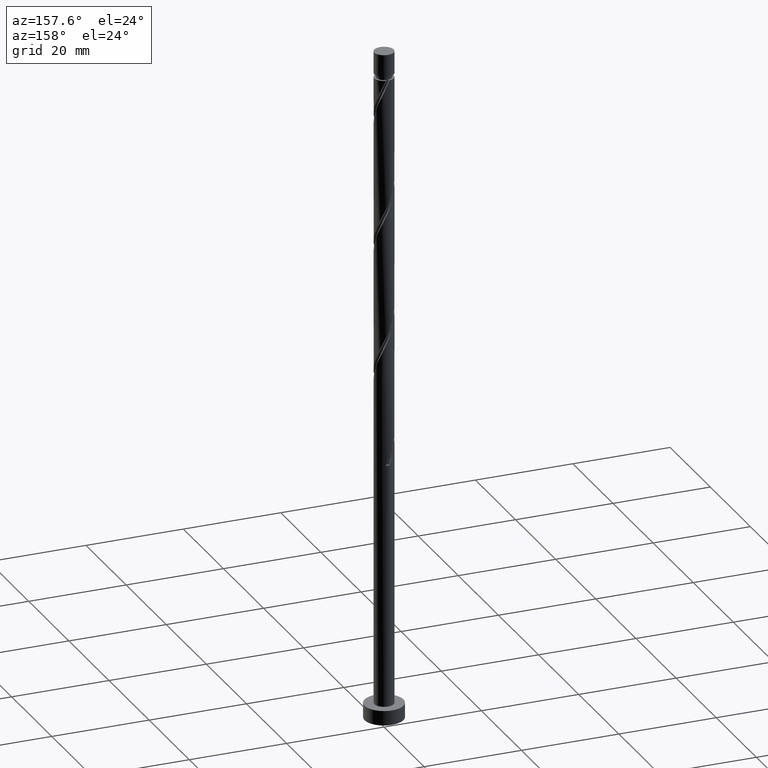
[diagram: clean part render]
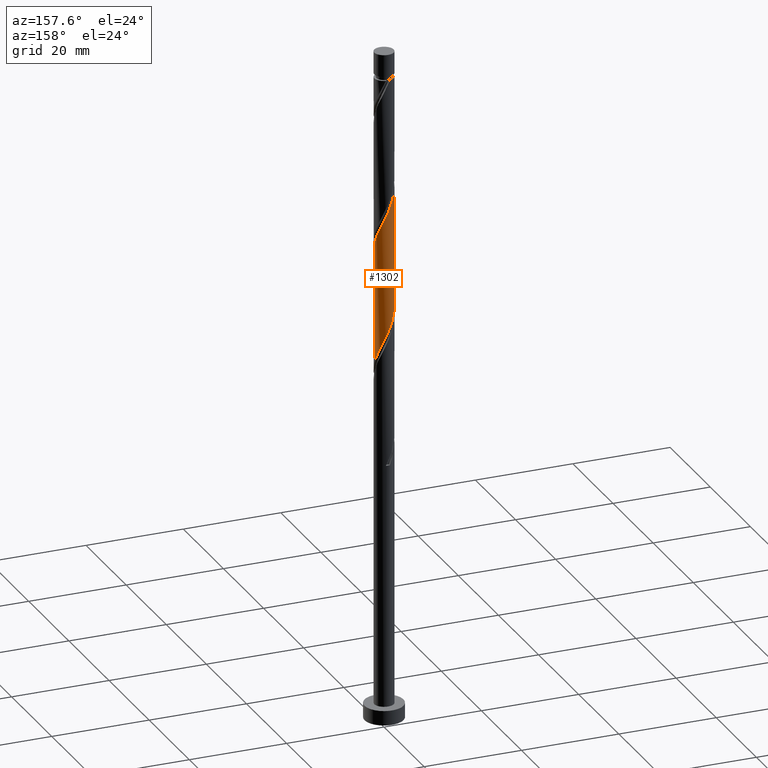
[diagram: same view with one face highlighted and labeled with its STEP entity id]
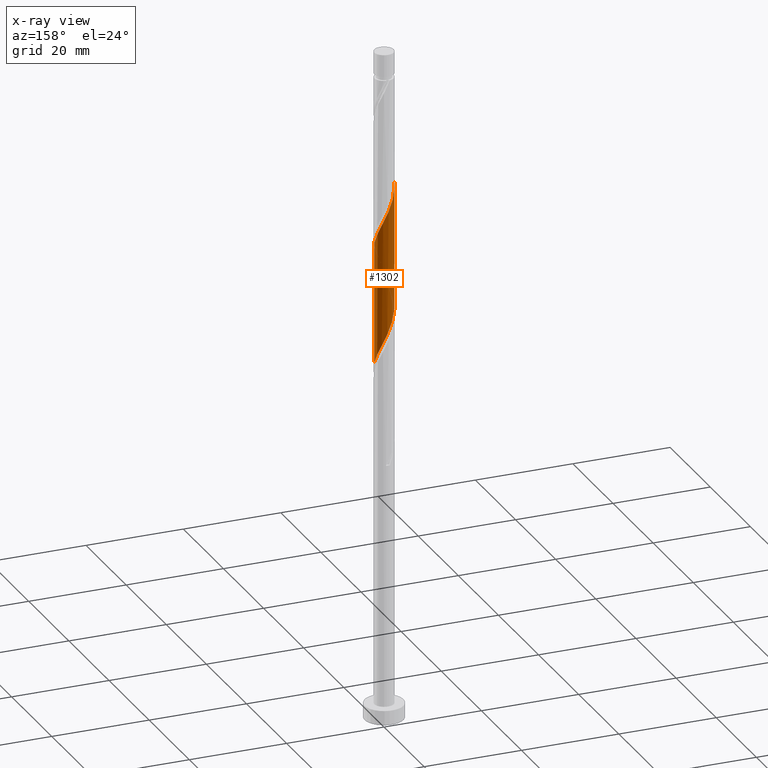
[diagram: x-ray of the same camera — body ghosted, the highlighted face saturated]
A machine part, auxiliary view. The second image highlights one B-rep face of the part: STEP entity #1302.
The next image is the same camera in x-ray: the body ghosted, the highlighted face saturated — about 0% of this face is hidden behind the body in this view.
In plain terms, the highlighted cylindrical surface (edge-blend (fillet) strip) has radius 2 mm, axis along (-0, -0, -1).
Its self-contained STEP definition (entity closure, byte-faithful):
#50 = CARTESIAN_POINT ( 'NONE',  ( 0.1703224295138035527, 1.992734370156876489, 105.2348544033738023 ) ) ;
#56 = CARTESIAN_POINT ( 'NONE',  ( -0.1161895186124997786, 2.017223038501451349, 105.8409150094344113 ) ) ;
#62 = CARTESIAN_POINT ( 'NONE',  ( -0.6798004310727961963, 1.902776961498554575, 107.0530362215555868 ) ) ;
#90 = VERTEX_POINT ( 'NONE', #553 ) ;
#96 = CARTESIAN_POINT ( 'NONE',  ( -0.1703224295138028310, 1.992734370156874713, 80.99243016094956715 ) ) ;
#117 = CARTESIAN_POINT ( 'NONE',  ( 1.394470680848406197, 1.433684595806965945, 77.35606652458592691 ) ) ;
#142 = CARTESIAN_POINT ( 'NONE',  ( 2.000000000000000000, 2.449293598294706414E-16, 138.4499999999999886 ) ) ;
#171 = AXIS2_PLACEMENT_3D ( 'NONE', #875, #769, #1139 ) ;
#183 = ORIENTED_EDGE ( 'NONE', *, *, #1131, .F. ) ;
#190 = ORIENTED_EDGE ( 'NONE', *, *, #549, .F. ) ;
#215 = CARTESIAN_POINT ( 'NONE',  ( 1.600603406160404418, 1.233189980288573295, 76.75000591852530363 ) ) ;
#246 = VERTEX_POINT ( 'NONE', #1659 ) ;
#248 = CARTESIAN_POINT ( 'NONE',  ( 0.6798004310727959743, 1.902776961498551689, 79.17424834276771151 ) ) ;
#250 = DIRECTION ( 'NONE',  ( -0.000000000000000000, -0.000000000000000000, -1.000000000000000000 ) ) ;
#260 = CARTESIAN_POINT ( 'NONE',  ( 1.741900447066337954, 0.9827425057002944220, 76.14394531246470876 ) ) ;
#269 = CYLINDRICAL_SURFACE ( 'NONE', #171, 2.000000000000000000 ) ;
#278 = VERTEX_POINT ( 'NONE', #1631 ) ;
#302 = CARTESIAN_POINT ( 'NONE',  ( -2.000000000000003109, -9.647149353755143079E-16, 112.2641878028608033 ) ) ;
#350 = CARTESIAN_POINT ( 'NONE',  ( -0.4568343776401058709, 1.968245701812301851, 81.59849076701014781 ) ) ;
#383 = CARTESIAN_POINT ( 'NONE',  ( 0.3979949748426484524, 1.959999999999999964, 79.78030894882837742 ) ) ;
#405 = LINE ( 'NONE', #142, #1288 ) ;
#415 = VERTEX_POINT ( 'NONE', #302 ) ;
#421 = CARTESIAN_POINT ( 'NONE',  ( -2.000000000000000000, 0.000000000000000000, 138.4499999999999886 ) ) ;
#430 = CARTESIAN_POINT ( 'NONE',  ( -1.394470680848407529, 1.433684595806968387, 108.8712180397374141 ) ) ;
#440 = CARTESIAN_POINT ( 'NONE',  ( -0.3979949748426477862, 1.960000000000003073, 106.4469756154949920 ) ) ;
#444 = CARTESIAN_POINT ( 'NONE',  ( -1.883197487972274375, 0.7322950311120159927, 110.6893998579192413 ) ) ;
#447 = CARTESIAN_POINT ( 'NONE',  ( -0.9340691933046022521, 1.768478086411957584, 107.6590968276162243 ) ) ;
#453 = CARTESIAN_POINT ( 'NONE',  ( -1.948211798543802775, 0.4521844623765091664, 111.2954604639798646 ) ) ;
#463 = CARTESIAN_POINT ( 'NONE',  ( 1.948211798543800555, 0.4521844623765074456, 74.93182410034353325 ) ) ;
#497 = CARTESIAN_POINT ( 'NONE',  ( -1.996690616564939846, 0.1150068768444767603, 87.05303622155564369 ) ) ;
#549 = EDGE_CURVE ( 'NONE', #278, #415, #837, .T. ) ;
#553 = CARTESIAN_POINT ( 'NONE',  ( -2.000000000000000000, 1.533074122108385710E-15, 87.29643009479592308 ) ) ;
#560 = CARTESIAN_POINT ( 'NONE',  ( 1.996690616564942955, 0.1150068768444761219, 99.17424834276773993 ) ) ;
#577 = CARTESIAN_POINT ( 'NONE',  ( -1.741900447066340174, 0.9827425057002956432, 110.0833392518586322 ) ) ;
#624 = CARTESIAN_POINT ( 'NONE',  ( -2.000000000000000000, 0.05755105304764007029, 87.17433209007769790 ) ) ;
#636 = CARTESIAN_POINT ( 'NONE',  ( -2.000000000000000000, 1.533074122108385710E-15, 87.29643009479592308 ) ) ;
#647 = EDGE_LOOP ( 'NONE', ( #190, #1169, #1188, #183 ) ) ;
#691 = CARTESIAN_POINT ( 'NONE',  ( 1.220637884402356432, 1.584311571365226046, 102.8106119791313375 ) ) ;
#696 = CARTESIAN_POINT ( 'NONE',  ( 0.7248413235775373886, 1.864029252891266530, 104.0227331912525841 ) ) ;
#701 = CARTESIAN_POINT ( 'NONE',  ( -2.000000000000005329, 0.2290578547702371570, 111.7782278498895039 ) ) ;
#707 = CARTESIAN_POINT ( 'NONE',  ( 2.000000000000003109, 0.05755105304764921575, 99.05295247424567151 ) ) ;
#762 = CARTESIAN_POINT ( 'NONE',  ( 1.999999999999998668, 0.2290578547702498968, 74.44905671443390816 ) ) ;
#769 = DIRECTION ( 'NONE',  ( -0.000000000000000000, -0.000000000000000000, -1.000000000000000000 ) ) ;
#785 = EDGE_CURVE ( 'NONE', #90, #246, #1076, .T. ) ;
#802 = DIRECTION ( 'NONE',  ( -0.000000000000000000, -0.000000000000000000, -1.000000000000000000 ) ) ;
#804 = CARTESIAN_POINT ( 'NONE',  ( 0.4568343776401070366, 1.968245701812304072, 104.6287937973131790 ) ) ;
#837 =( BOUNDED_CURVE ( )  B_SPLINE_CURVE ( 2, ( #1337, #707, #560, #1080, #1313, #1463, #1586, #1321, #691, #1218, #696, #804, #50, #56, #440, #62, #447, #1326, #430, #1592, #577, #444, #453, #701, #1202 ),
 .UNSPECIFIED., .F., .T. ) 
 B_SPLINE_CURVE_WITH_KNOTS ( ( 3, 2, 2, 2, 2, 2, 2, 2, 2, 2, 2, 2, 3 ),
 ( 0.4295252162417514952, 0.4318181818181817677, 0.4431818181818182323, 0.4545454545454545858, 0.4659090909090909394, 0.4772727272727272929, 0.4886363636363636465, 0.5000000000000000000, 0.5113636363636363535, 0.5227272727272727071, 0.5340909090909091717, 0.5454545454545454142, 0.5545252162417517727 ),
 .UNSPECIFIED. ) 
 CURVE ( )  GEOMETRIC_REPRESENTATION_ITEM ( )  RATIONAL_B_SPLINE_CURVE ( ( 0.9061101570135647876, 0.9072237824201470069, 0.9090909090909243817, 0.8998376744372265090, 0.9090909090909243817, 0.8998376744372265090, 0.9090909090909243817, 0.8998376744372265090, 0.9090909090909243817, 0.8998376744372265090, 0.9090909090909243817, 0.8998376744372265090, 0.9090909090909243817, 0.8998376744372265090, 0.9090909090909243817, 0.8998376744372265090, 0.9090909090909243817, 0.8998376744372265090, 0.9090909090909243817, 0.8998376744372265090, 0.9090909090909243817, 0.8998376744372265090, 0.9090909090909243817, 0.9017048011080036618, 0.9061101570135651206 ) ) 
 REPRESENTATION_ITEM ( '' )  );
#842 = CARTESIAN_POINT ( 'NONE',  ( -1.980155124014550738, 0.4020876473299550002, 86.44697561549500620 ) ) ;
#873 = CARTESIAN_POINT ( 'NONE',  ( -0.9928482695149674075, 1.759812803970227879, 82.81061197913139438 ) ) ;
#875 = CARTESIAN_POINT ( 'NONE',  ( 0.000000000000000000, 0.000000000000000000, 138.4499999999999886 ) ) ;
#882 = CARTESIAN_POINT ( 'NONE',  ( -1.617545623245912001, 1.176242388590886589, 84.62879379731319318 ) ) ;
#922 = VECTOR ( 'NONE', #802, 1000.000000000000000 ) ;
#1016 = CARTESIAN_POINT ( 'NONE',  ( 1.188337955536407309, 1.634179211325358816, 77.96212713064653599 ) ) ;
#1076 =( BOUNDED_CURVE ( )  B_SPLINE_CURVE ( 2, ( #636, #624, #497, #842, #1491, #1520, #882, #1355, #1108, #873, #1386, #350, #96, #1397, #383, #248, #1264, #1016, #117, #215, #260, #1137, #463, #762, #1242 ),
 .UNSPECIFIED., .F., .T. ) 
 B_SPLINE_CURVE_WITH_KNOTS ( ( 3, 2, 2, 2, 2, 2, 2, 2, 2, 2, 2, 2, 3 ),
 ( 0.6795252162417511066, 0.6818181818181817677, 0.6931818181818182323, 0.7045454545454545858, 0.7159090909090909394, 0.7272727272727272929, 0.7386363636363636465, 0.7500000000000000000, 0.7613636363636363535, 0.7727272727272727071, 0.7840909090909090606, 0.7954545454545454142, 0.8045252162417511066 ),
 .UNSPECIFIED. ) 
 CURVE ( )  GEOMETRIC_REPRESENTATION_ITEM ( )  RATIONAL_B_SPLINE_CURVE ( ( 0.9061101570135583483, 0.9072237824201404566, 0.9090909090909180534, 0.8998376744372204028, 0.9090909090909180534, 0.8998376744372204028, 0.9090909090909180534, 0.8998376744372204028, 0.9090909090909180534, 0.8998376744372204028, 0.9090909090909180534, 0.8998376744372204028, 0.9090909090909180534, 0.8998376744372204028, 0.9090909090909180534, 0.8998376744372204028, 0.9090909090909180534, 0.8998376744372204028, 0.9090909090909180534, 0.8998376744372204028, 0.9090909090909180534, 0.8998376744372204028, 0.9090909090909180534, 0.9017048011079979997, 0.9061101570135583483 ) ) 
 REPRESENTATION_ITEM ( '' )  );
#1080 = CARTESIAN_POINT ( 'NONE',  ( 1.980155124014554291, 0.4020876473299548337, 99.78030894882836321 ) ) ;
#1108 = CARTESIAN_POINT ( 'NONE',  ( -1.220637884402354656, 1.584311571365223825, 83.41667258519198924 ) ) ;
#1131 = EDGE_CURVE ( 'NONE', #415, #90, #1535, .T. ) ;
#1137 = CARTESIAN_POINT ( 'NONE',  ( 1.883197487972271933, 0.7322950311120133282, 75.53788470640411390 ) ) ;
#1139 = DIRECTION ( 'NONE',  ( -1.000000000000000000, 0.000000000000000000, 0.000000000000000000 ) ) ;
#1169 = ORIENTED_EDGE ( 'NONE', *, *, #1274, .T. ) ;
#1188 = ORIENTED_EDGE ( 'NONE', *, *, #785, .F. ) ;
#1202 = CARTESIAN_POINT ( 'NONE',  ( -2.000000000000003109, -9.647149353755143079E-16, 112.2641878028608033 ) ) ;
#1218 = CARTESIAN_POINT ( 'NONE',  ( 0.9928482695149686288, 1.759812803970230322, 103.4166725851919750 ) ) ;
#1242 = CARTESIAN_POINT ( 'NONE',  ( 2.000000000000000000, -1.974300332861531101E-15, 73.96309676146259449 ) ) ;
#1264 = CARTESIAN_POINT ( 'NONE',  ( 0.9340691933046015860, 1.768478086411955585, 78.56818773670714506 ) ) ;
#1274 = EDGE_CURVE ( 'NONE', #278, #246, #405, .T. ) ;
#1288 = VECTOR ( 'NONE', #250, 1000.000000000000000 ) ;
#1302 = ADVANCED_FACE ( 'NONE', ( #1399 ), #269, .T. ) ;
#1313 = CARTESIAN_POINT ( 'NONE',  ( 1.883409435608319304, 0.6728810428757542317, 100.3863695548889154 ) ) ;
#1321 = CARTESIAN_POINT ( 'NONE',  ( 1.448427499289745235, 1.408810338760220882, 102.2045513730707569 ) ) ;
#1326 = CARTESIAN_POINT ( 'NONE',  ( -1.188337955536408641, 1.634179211325361480, 108.2651574336768334 ) ) ;
#1337 = CARTESIAN_POINT ( 'NONE',  ( 2.000000000000003109, 8.899308318580325832E-16, 98.93085446952747475 ) ) ;
#1355 = CARTESIAN_POINT ( 'NONE',  ( -1.448427499289741682, 1.408810338760219993, 84.02273319125261253 ) ) ;
#1386 = CARTESIAN_POINT ( 'NONE',  ( -0.7248413235775366115, 1.864029252891264754, 82.20455137307078530 ) ) ;
#1397 = CARTESIAN_POINT ( 'NONE',  ( 0.1161895186125002227, 2.017223038501447796, 80.38636955488894387 ) ) ;
#1399 = FACE_OUTER_BOUND ( 'NONE', #647, .T. ) ;
#1463 = CARTESIAN_POINT ( 'NONE',  ( 1.786663747202085650, 0.9436744384215539627, 100.9924301609495672 ) ) ;
#1491 = CARTESIAN_POINT ( 'NONE',  ( -1.883409435608316862, 0.6728810428757543427, 85.84091500943441133 ) ) ;
#1520 = CARTESIAN_POINT ( 'NONE',  ( -1.786663747202082320, 0.9436744384215536297, 85.23485440337380226 ) ) ;
#1535 = LINE ( 'NONE', #421, #922 ) ;
#1586 = CARTESIAN_POINT ( 'NONE',  ( 1.617545623245914665, 1.176242388590887478, 101.5984907670101620 ) ) ;
#1592 = CARTESIAN_POINT ( 'NONE',  ( -1.600603406160406861, 1.233189980288575072, 109.4772786457980516 ) ) ;
#1631 = CARTESIAN_POINT ( 'NONE',  ( 2.000000000000003109, 8.899308318580325832E-16, 98.93085446952747475 ) ) ;
#1659 = CARTESIAN_POINT ( 'NONE',  ( 2.000000000000000000, -1.974300332861531101E-15, 73.96309676146259449 ) ) ;